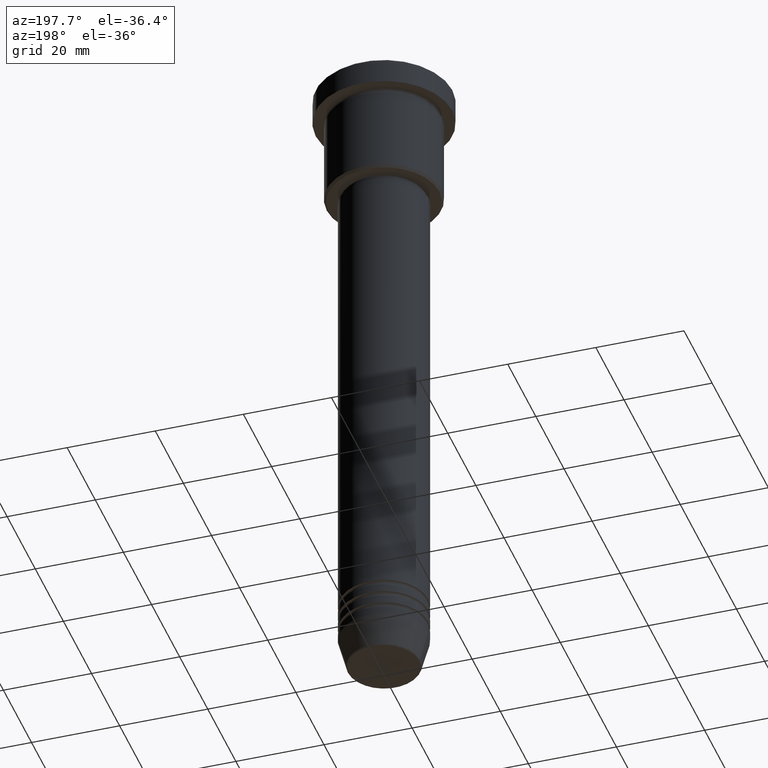
[diagram: clean part render]
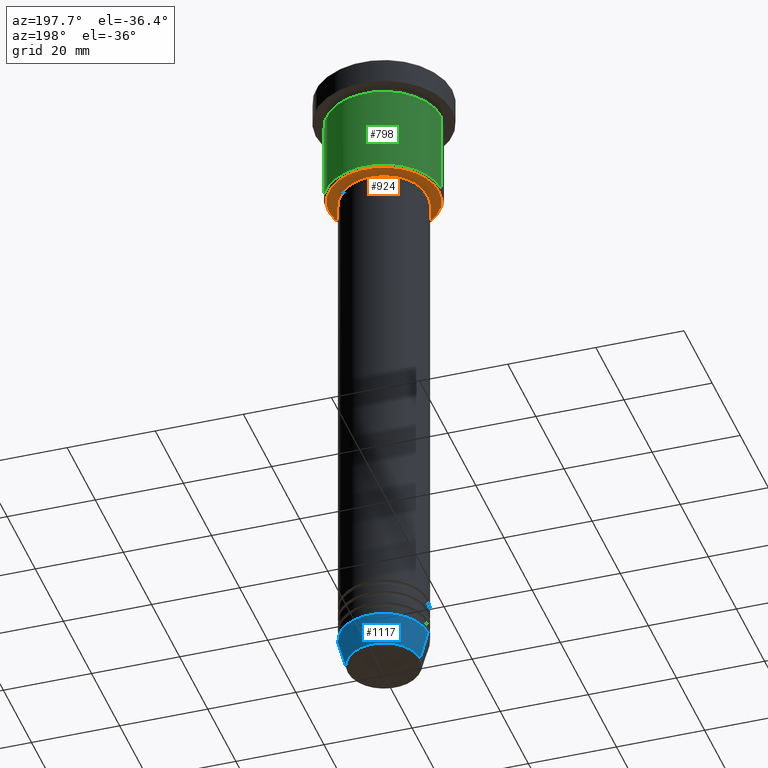
[diagram: same view with three faces highlighted in distinct colors, each labeled with its STEP entity id]
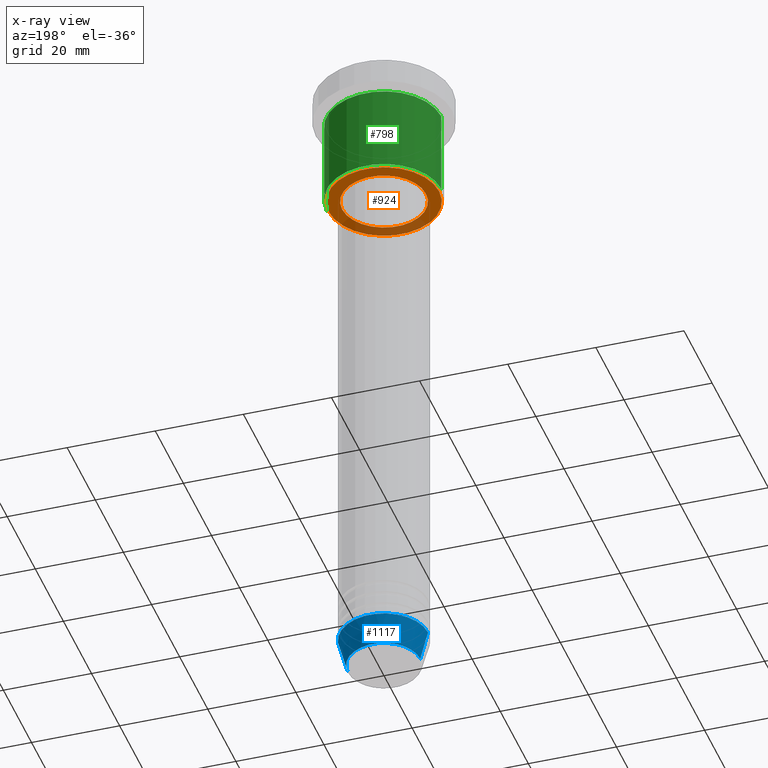
[diagram: x-ray of the same camera — body ghosted, the three highlighted faces saturated]
A machine part, auxiliary view with three faces highlighted in distinct colors.
The next image is the same camera in x-ray (body ghosted, the three faces saturated) — at least one of them is partly hidden behind the body in this view.
Their STEP definitions:

[orange] entity #924 — the highlighted planar face has unit normal (0, 0, -1).
#34 = AXIS2_PLACEMENT_3D ( 'NONE', #161, #896, #964 ) ;
#71 = AXIS2_PLACEMENT_3D ( 'NONE', #1168, #162, #523 ) ;
#80 = ORIENTED_EDGE ( 'NONE', *, *, #543, .T. ) ;
#121 = CARTESIAN_POINT ( 'NONE',  ( 0.000000000000000000, 0.000000000000000000, -26.99999999999998579 ) ) ;
#159 = CARTESIAN_POINT ( 'NONE',  ( -12.49999999999996980, 1.561424668912873336E-15, -26.99999999999998224 ) ) ;
#161 = CARTESIAN_POINT ( 'NONE',  ( 0.000000000000000000, 0.000000000000000000, -26.99999999999998579 ) ) ;
#162 = DIRECTION ( 'NONE',  ( 0.000000000000000000, 0.000000000000000000, -1.000000000000000000 ) ) ;
#343 = EDGE_CURVE ( 'NONE', #454, #1101, #1158, .T. ) ;
#361 = ORIENTED_EDGE ( 'NONE', *, *, #343, .T. ) ;
#375 = DIRECTION ( 'NONE',  ( 0.000000000000000000, 0.000000000000000000, -1.000000000000000000 ) ) ;
#406 = DIRECTION ( 'NONE',  ( -1.000000000000000000, 0.000000000000000000, 0.000000000000000000 ) ) ;
#454 = VERTEX_POINT ( 'NONE', #530 ) ;
#462 = VERTEX_POINT ( 'NONE', #159 ) ;
#523 = DIRECTION ( 'NONE',  ( -1.000000000000000000, 0.000000000000000000, 0.000000000000000000 ) ) ;
#527 = FACE_BOUND ( 'NONE', #597, .T. ) ;
#530 = CARTESIAN_POINT ( 'NONE',  ( 9.500000000000000000, 0.000000000000000000, -26.99999999999998579 ) ) ;
#534 = CIRCLE ( 'NONE', #71, 12.49999999999996980 ) ;
#543 = EDGE_CURVE ( 'NONE', #1029, #462, #534, .T. ) ;
#553 = CARTESIAN_POINT ( 'NONE',  ( 0.000000000000000000, 13.00000000000000000, -26.99999999999998224 ) ) ;
#561 = CIRCLE ( 'NONE', #34, 9.500000000000000000 ) ;
#592 = DIRECTION ( 'NONE',  ( 0.000000000000000000, 0.000000000000000000, -1.000000000000000000 ) ) ;
#597 = EDGE_LOOP ( 'NONE', ( #361, #1022 ) ) ;
#599 = CIRCLE ( 'NONE', #729, 12.49999999999996980 ) ;
#618 = PLANE ( 'NONE',  #864 ) ;
#627 = CARTESIAN_POINT ( 'NONE',  ( 12.49999999999996980, 0.000000000000000000, -26.99999999999998224 ) ) ;
#657 = AXIS2_PLACEMENT_3D ( 'NONE', #121, #669, #867 ) ;
#669 = DIRECTION ( 'NONE',  ( -0.000000000000000000, -0.000000000000000000, 1.000000000000000000 ) ) ;
#729 = AXIS2_PLACEMENT_3D ( 'NONE', #784, #592, #406 ) ;
#739 = DIRECTION ( 'NONE',  ( -1.000000000000000000, 0.000000000000000000, -0.000000000000000000 ) ) ;
#784 = CARTESIAN_POINT ( 'NONE',  ( 0.000000000000000000, 0.000000000000000000, -26.99999999999998224 ) ) ;
#844 = CARTESIAN_POINT ( 'NONE',  ( -9.500000000000000000, 1.163414459189985485E-15, -26.99999999999998579 ) ) ;
#848 = EDGE_CURVE ( 'NONE', #462, #1029, #599, .T. ) ;
#864 = AXIS2_PLACEMENT_3D ( 'NONE', #553, #375, #739 ) ;
#867 = DIRECTION ( 'NONE',  ( 1.000000000000000000, 0.000000000000000000, 0.000000000000000000 ) ) ;
#896 = DIRECTION ( 'NONE',  ( -0.000000000000000000, -0.000000000000000000, 1.000000000000000000 ) ) ;
#898 = EDGE_LOOP ( 'NONE', ( #80, #985 ) ) ;
#924 = ADVANCED_FACE ( 'NONE', ( #1154, #527 ), #618, .T. ) ;
#964 = DIRECTION ( 'NONE',  ( 1.000000000000000000, 0.000000000000000000, 0.000000000000000000 ) ) ;
#985 = ORIENTED_EDGE ( 'NONE', *, *, #848, .T. ) ;
#1022 = ORIENTED_EDGE ( 'NONE', *, *, #1034, .T. ) ;
#1029 = VERTEX_POINT ( 'NONE', #627 ) ;
#1034 = EDGE_CURVE ( 'NONE', #1101, #454, #561, .T. ) ;
#1101 = VERTEX_POINT ( 'NONE', #844 ) ;
#1154 = FACE_OUTER_BOUND ( 'NONE', #898, .T. ) ;
#1158 = CIRCLE ( 'NONE', #657, 9.500000000000000000 ) ;
#1168 = CARTESIAN_POINT ( 'NONE',  ( 0.000000000000000000, 0.000000000000000000, -26.99999999999998224 ) ) ;

[blue] entity #1117 — the highlighted conical surface has half-angle 15 deg.
#9 = DIRECTION ( 'NONE',  ( -0.000000000000000000, -0.000000000000000000, 1.000000000000000000 ) ) ;
#13 = CARTESIAN_POINT ( 'NONE',  ( -8.223655072137198374, 1.115877042642912448E-15, -151.6294095225512137 ) ) ;
#15 = FACE_OUTER_BOUND ( 'NONE', #196, .T. ) ;
#76 = DIRECTION ( 'NONE',  ( -0.000000000000000000, -0.000000000000000000, 1.000000000000000000 ) ) ;
#105 = EDGE_CURVE ( 'NONE', #473, #797, #1156, .T. ) ;
#134 = CIRCLE ( 'NONE', #600, 8.223655072137198374 ) ;
#174 = CARTESIAN_POINT ( 'NONE',  ( -10.00000000000000000, 1.224646799147353256E-15, -145.0000000000000000 ) ) ;
#182 = VERTEX_POINT ( 'NONE', #13 ) ;
#189 = LINE ( 'NONE', #174, #536 ) ;
#196 = EDGE_LOOP ( 'NONE', ( #213, #294, #531, #907 ) ) ;
#213 = ORIENTED_EDGE ( 'NONE', *, *, #1135, .T. ) ;
#235 = CONICAL_SURFACE ( 'NONE', #441, 10.00000000000000000, 0.2617993877991500740 ) ;
#294 = ORIENTED_EDGE ( 'NONE', *, *, #894, .T. ) ;
#339 = CARTESIAN_POINT ( 'NONE',  ( 10.00000000000000000, 0.000000000000000000, -145.0000000000000000 ) ) ;
#400 = AXIS2_PLACEMENT_3D ( 'NONE', #624, #76, #984 ) ;
#418 = CARTESIAN_POINT ( 'NONE',  ( 8.223655072137198374, 0.000000000000000000, -151.6294095225512137 ) ) ;
#441 = AXIS2_PLACEMENT_3D ( 'NONE', #726, #1006, #569 ) ;
#453 = CARTESIAN_POINT ( 'NONE',  ( 0.000000000000000000, 0.000000000000000000, -151.6294095225512137 ) ) ;
#473 = VERTEX_POINT ( 'NONE', #879 ) ;
#505 = LINE ( 'NONE', #339, #673 ) ;
#531 = ORIENTED_EDGE ( 'NONE', *, *, #105, .F. ) ;
#536 = VECTOR ( 'NONE', #719, 1000.000000000000000 ) ;
#556 = VERTEX_POINT ( 'NONE', #418 ) ;
#569 = DIRECTION ( 'NONE',  ( 1.000000000000000000, 0.000000000000000000, 0.000000000000000000 ) ) ;
#600 = AXIS2_PLACEMENT_3D ( 'NONE', #453, #9, #1091 ) ;
#624 = CARTESIAN_POINT ( 'NONE',  ( 0.000000000000000000, 0.000000000000000000, -145.0000000000000000 ) ) ;
#671 = EDGE_CURVE ( 'NONE', #556, #473, #505, .T. ) ;
#673 = VECTOR ( 'NONE', #1151, 1000.000000000000000 ) ;
#719 = DIRECTION ( 'NONE',  ( -0.2588190451025213501, 3.169619151431772337E-17, 0.9659258262890680902 ) ) ;
#726 = CARTESIAN_POINT ( 'NONE',  ( 0.000000000000000000, 0.000000000000000000, -145.0000000000000000 ) ) ;
#797 = VERTEX_POINT ( 'NONE', #817 ) ;
#817 = CARTESIAN_POINT ( 'NONE',  ( -10.00000000000000000, 1.224646799147353256E-15, -145.0000000000000000 ) ) ;
#879 = CARTESIAN_POINT ( 'NONE',  ( 10.00000000000000000, 0.000000000000000000, -145.0000000000000000 ) ) ;
#894 = EDGE_CURVE ( 'NONE', #182, #797, #189, .T. ) ;
#907 = ORIENTED_EDGE ( 'NONE', *, *, #671, .F. ) ;
#984 = DIRECTION ( 'NONE',  ( 1.000000000000000000, 0.000000000000000000, 0.000000000000000000 ) ) ;
#1006 = DIRECTION ( 'NONE',  ( -0.000000000000000000, -0.000000000000000000, 1.000000000000000000 ) ) ;
#1091 = DIRECTION ( 'NONE',  ( 1.000000000000000000, 0.000000000000000000, 0.000000000000000000 ) ) ;
#1117 = ADVANCED_FACE ( 'NONE', ( #15 ), #235, .T. ) ;
#1135 = EDGE_CURVE ( 'NONE', #556, #182, #134, .T. ) ;
#1151 = DIRECTION ( 'NONE',  ( 0.2588190451025213501, 0.000000000000000000, 0.9659258262890680902 ) ) ;
#1156 = CIRCLE ( 'NONE', #400, 10.00000000000000000 ) ;

[green] entity #798 — the highlighted cylindrical surface (partial cylindrical patch) has radius 13 mm, axis along (-0, -0, 1).
#30 = CIRCLE ( 'NONE', #906, 13.00000000000000000 ) ;
#126 = VERTEX_POINT ( 'NONE', #1165 ) ;
#184 = FACE_OUTER_BOUND ( 'NONE', #1055, .T. ) ;
#285 = DIRECTION ( 'NONE',  ( -0.000000000000000000, -0.000000000000000000, 1.000000000000000000 ) ) ;
#314 = CARTESIAN_POINT ( 'NONE',  ( -13.00000000000000000, 1.592040838891559095E-15, -26.49999999999994671 ) ) ;
#345 = AXIS2_PLACEMENT_3D ( 'NONE', #567, #1062, #383 ) ;
#352 = DIRECTION ( 'NONE',  ( -0.000000000000000000, -0.000000000000000000, 1.000000000000000000 ) ) ;
#377 = LINE ( 'NONE', #741, #995 ) ;
#378 = CARTESIAN_POINT ( 'NONE',  ( 13.00000000000000000, 0.000000000000000000, -6.999999999999995559 ) ) ;
#383 = DIRECTION ( 'NONE',  ( -1.000000000000000000, 0.000000000000000000, 0.000000000000000000 ) ) ;
#402 = CARTESIAN_POINT ( 'NONE',  ( 0.000000000000000000, 0.000000000000000000, -6.999999999999995559 ) ) ;
#419 = DIRECTION ( 'NONE',  ( 1.000000000000000000, 0.000000000000000000, 0.000000000000000000 ) ) ;
#483 = EDGE_CURVE ( 'NONE', #631, #978, #976, .T. ) ;
#511 = ORIENTED_EDGE ( 'NONE', *, *, #621, .F. ) ;
#545 = DIRECTION ( 'NONE',  ( -0.000000000000000000, -0.000000000000000000, 1.000000000000000000 ) ) ;
#560 = ORIENTED_EDGE ( 'NONE', *, *, #926, .T. ) ;
#567 = CARTESIAN_POINT ( 'NONE',  ( 0.000000000000000000, 0.000000000000000000, -26.49999999999994671 ) ) ;
#575 = DIRECTION ( 'NONE',  ( 1.000000000000000000, 0.000000000000000000, 0.000000000000000000 ) ) ;
#621 = EDGE_CURVE ( 'NONE', #978, #126, #30, .T. ) ;
#631 = VERTEX_POINT ( 'NONE', #1132 ) ;
#634 = VERTEX_POINT ( 'NONE', #314 ) ;
#741 = CARTESIAN_POINT ( 'NONE',  ( -13.00000000000000000, 1.592040838891559095E-15, 0.000000000000000000 ) ) ;
#755 = ORIENTED_EDGE ( 'NONE', *, *, #483, .F. ) ;
#798 = ADVANCED_FACE ( 'NONE', ( #184 ), #822, .T. ) ;
#811 = AXIS2_PLACEMENT_3D ( 'NONE', #1081, #545, #575 ) ;
#822 = CYLINDRICAL_SURFACE ( 'NONE', #811, 13.00000000000000000 ) ;
#849 = CIRCLE ( 'NONE', #345, 13.00000000000000000 ) ;
#887 = ORIENTED_EDGE ( 'NONE', *, *, #1102, .T. ) ;
#903 = CARTESIAN_POINT ( 'NONE',  ( 13.00000000000000000, 0.000000000000000000, 0.000000000000000000 ) ) ;
#906 = AXIS2_PLACEMENT_3D ( 'NONE', #402, #961, #419 ) ;
#926 = EDGE_CURVE ( 'NONE', #631, #634, #849, .T. ) ;
#961 = DIRECTION ( 'NONE',  ( -0.000000000000000000, -0.000000000000000000, 1.000000000000000000 ) ) ;
#976 = LINE ( 'NONE', #903, #1064 ) ;
#978 = VERTEX_POINT ( 'NONE', #378 ) ;
#995 = VECTOR ( 'NONE', #285, 1000.000000000000000 ) ;
#1055 = EDGE_LOOP ( 'NONE', ( #560, #887, #511, #755 ) ) ;
#1062 = DIRECTION ( 'NONE',  ( -0.000000000000000000, -0.000000000000000000, 1.000000000000000000 ) ) ;
#1064 = VECTOR ( 'NONE', #352, 1000.000000000000000 ) ;
#1081 = CARTESIAN_POINT ( 'NONE',  ( 0.000000000000000000, 0.000000000000000000, 0.000000000000000000 ) ) ;
#1102 = EDGE_CURVE ( 'NONE', #634, #126, #377, .T. ) ;
#1132 = CARTESIAN_POINT ( 'NONE',  ( 13.00000000000000000, 0.000000000000000000, -26.49999999999994671 ) ) ;
#1165 = CARTESIAN_POINT ( 'NONE',  ( -13.00000000000000000, 1.592040838891559095E-15, -6.999999999999995559 ) ) ;